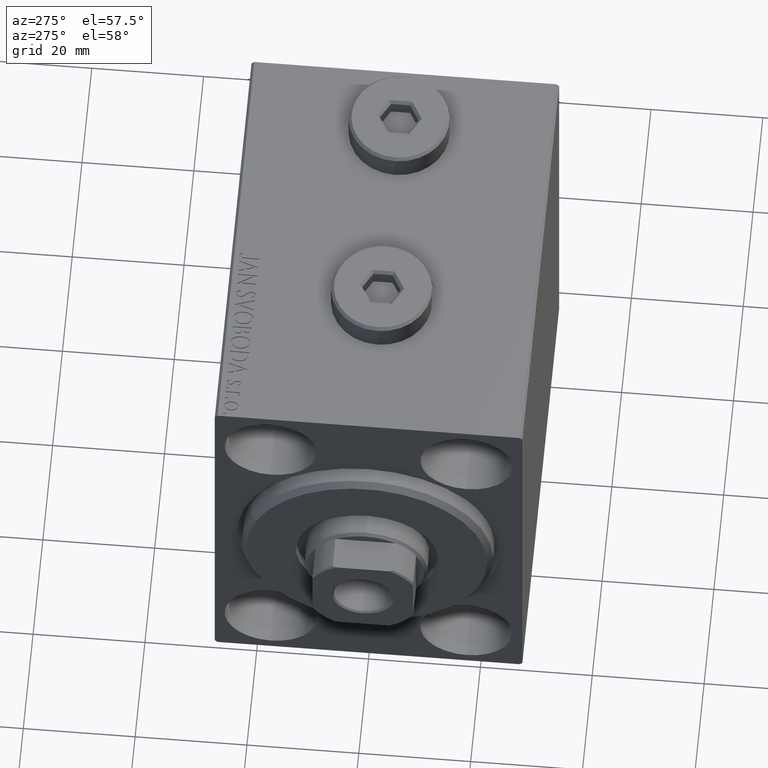
[diagram: clean part render]
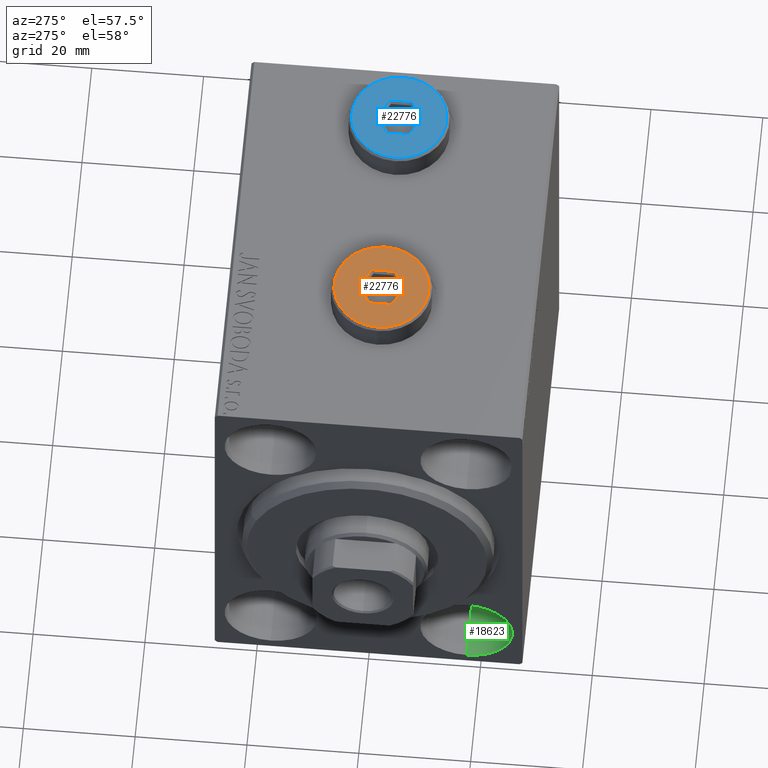
[diagram: same view with three faces highlighted in distinct colors, each labeled with its STEP entity id]
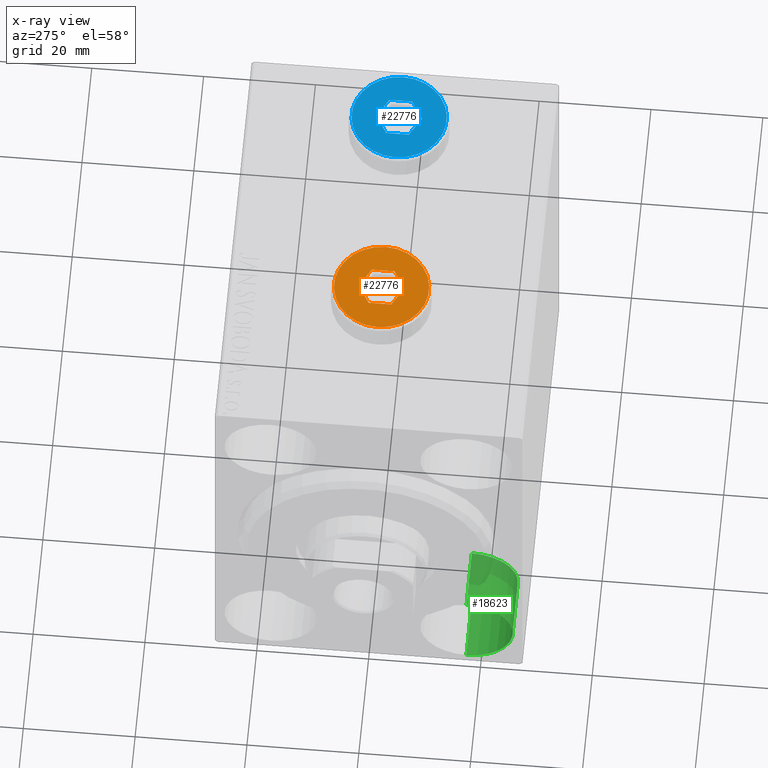
[diagram: x-ray of the same camera — body ghosted, the three highlighted faces saturated]
A machine part, auxiliary view with three faces highlighted in distinct colors.
The next image is the same camera in x-ray (body ghosted, the three faces saturated) — at least one of them is partly hidden behind the body in this view.
Their STEP definitions:

[orange] entity #22776 — the highlighted planar face has unit normal (0, 0, 1).
#1019 = VECTOR ( 'NONE', #34478, 1000.000000000000000 ) ;
#1353 = CARTESIAN_POINT ( 'NONE',  ( -1.006139216460143630E-15, -4.041451884327387667, 5.000000000000000000 ) ) ;
#2672 = CARTESIAN_POINT ( 'NONE',  ( 8.500000000000010658, 1.071565949253934716E-15, 5.000000000000000000 ) ) ;
#2702 = DIRECTION ( 'NONE',  ( 1.000000000000000000, 0.000000000000000000, -0.000000000000000000 ) ) ;
#3187 = CARTESIAN_POINT ( 'NONE',  ( -3.500000000000006661, 1.732050807568878081, 5.000000000000000000 ) ) ;
#3284 = VERTEX_POINT ( 'NONE', #29313 ) ;
#3651 = VERTEX_POINT ( 'NONE', #1353 ) ;
#4197 = ORIENTED_EDGE ( 'NONE', *, *, #7590, .T. ) ;
#4661 = CARTESIAN_POINT ( 'NONE',  ( 0.000000000000000000, 0.000000000000000000, 5.000000000000000000 ) ) ;
#4797 = CIRCLE ( 'NONE', #31079, 8.500000000000010658 ) ;
#5021 = ORIENTED_EDGE ( 'NONE', *, *, #17170, .T. ) ;
#5582 = AXIS2_PLACEMENT_3D ( 'NONE', #4661, #35951, #8314 ) ;
#6135 = DIRECTION ( 'NONE',  ( 0.8660254037844387076, 0.4999999999999998335, 0.000000000000000000 ) ) ;
#6663 = VERTEX_POINT ( 'NONE', #26979 ) ;
#7590 = EDGE_CURVE ( 'NONE', #3651, #8164, #43003, .T. ) ;
#7676 = EDGE_CURVE ( 'NONE', #8164, #44564, #27394, .T. ) ;
#8164 = VERTEX_POINT ( 'NONE', #21612 ) ;
#8314 = DIRECTION ( 'NONE',  ( 1.000000000000000000, 0.000000000000000000, 0.000000000000000000 ) ) ;
#8628 = CARTESIAN_POINT ( 'NONE',  ( 3.500000000000006661, -1.732050807568878303, 5.000000000000000000 ) ) ;
#9116 = EDGE_CURVE ( 'NONE', #40906, #6663, #34874, .T. ) ;
#11252 = VECTOR ( 'NONE', #26897, 1000.000000000000000 ) ;
#11511 = EDGE_CURVE ( 'NONE', #6663, #29919, #35589, .T. ) ;
#11673 = CARTESIAN_POINT ( 'NONE',  ( -3.250000000000003109, -2.165063509461102598, 5.000000000000000000 ) ) ;
#11685 = ORIENTED_EDGE ( 'NONE', *, *, #18774, .T. ) ;
#12681 = CARTESIAN_POINT ( 'NONE',  ( 0.000000000000000000, 0.000000000000000000, 5.000000000000000000 ) ) ;
#13201 = PLANE ( 'NONE',  #30734 ) ;
#13697 = EDGE_CURVE ( 'NONE', #29919, #3651, #30351, .T. ) ;
#15031 = DIRECTION ( 'NONE',  ( 0.000000000000000000, -1.000000000000000000, 0.000000000000000000 ) ) ;
#15205 = DIRECTION ( 'NONE',  ( 1.000000000000000000, 0.000000000000000000, 0.000000000000000000 ) ) ;
#16185 = CARTESIAN_POINT ( 'NONE',  ( -0.2500000000000027756, 3.897114317029978459, 5.000000000000000000 ) ) ;
#16404 = CARTESIAN_POINT ( 'NONE',  ( 1.590596867181068292E-15, 4.041451884327386779, 5.000000000000000000 ) ) ;
#16707 = EDGE_LOOP ( 'NONE', ( #5021, #11685 ) ) ;
#17170 = EDGE_CURVE ( 'NONE', #3284, #24249, #4797, .T. ) ;
#17388 = EDGE_LOOP ( 'NONE', ( #39709, #28501, #31256, #37763, #41286, #4197 ) ) ;
#18498 = VECTOR ( 'NONE', #25138, 1000.000000000000114 ) ;
#18774 = EDGE_CURVE ( 'NONE', #24249, #3284, #26699, .T. ) ;
#19822 = FACE_OUTER_BOUND ( 'NONE', #16707, .T. ) ;
#20054 = CARTESIAN_POINT ( 'NONE',  ( 0.000000000000000000, 0.000000000000000000, 5.000000000000000000 ) ) ;
#20448 = CARTESIAN_POINT ( 'NONE',  ( 3.500000000000006661, -2.020725942163693833, 5.000000000000000000 ) ) ;
#20661 = VECTOR ( 'NONE', #15031, 1000.000000000000000 ) ;
#21612 = CARTESIAN_POINT ( 'NONE',  ( -3.500000000000006661, -2.020725942163694278, 5.000000000000000000 ) ) ;
#22776 = ADVANCED_FACE ( 'NONE', ( #23243, #19822 ), #13201, .T. ) ;
#23052 = CARTESIAN_POINT ( 'NONE',  ( -3.500000000000006661, 2.020725942163692945, 5.000000000000000000 ) ) ;
#23243 = FACE_BOUND ( 'NONE', #17388, .T. ) ;
#24249 = VERTEX_POINT ( 'NONE', #2672 ) ;
#25138 = DIRECTION ( 'NONE',  ( -0.8660254037844385966, 0.4999999999999999445, 0.000000000000000000 ) ) ;
#26699 = CIRCLE ( 'NONE', #5582, 8.500000000000010658 ) ;
#26897 = DIRECTION ( 'NONE',  ( 0.8660254037844387076, -0.4999999999999998890, 0.000000000000000000 ) ) ;
#26979 = CARTESIAN_POINT ( 'NONE',  ( 3.500000000000006661, 2.020725942163694722, 5.000000000000000000 ) ) ;
#27394 = LINE ( 'NONE', #3187, #1019 ) ;
#28501 = ORIENTED_EDGE ( 'NONE', *, *, #35358, .T. ) ;
#29313 = CARTESIAN_POINT ( 'NONE',  ( -8.500000000000010658, 0.000000000000000000, 5.000000000000000000 ) ) ;
#29919 = VERTEX_POINT ( 'NONE', #20448 ) ;
#30351 = LINE ( 'NONE', #30794, #43414 ) ;
#30565 = CARTESIAN_POINT ( 'NONE',  ( 3.250000000000003109, 2.165063509461103042, 5.000000000000000000 ) ) ;
#30734 = AXIS2_PLACEMENT_3D ( 'NONE', #20054, #33759, #2702 ) ;
#30794 = CARTESIAN_POINT ( 'NONE',  ( 0.2500000000000027756, -3.897114317029979347, 5.000000000000000000 ) ) ;
#31079 = AXIS2_PLACEMENT_3D ( 'NONE', #12681, #33240, #15205 ) ;
#31256 = ORIENTED_EDGE ( 'NONE', *, *, #9116, .T. ) ;
#33240 = DIRECTION ( 'NONE',  ( 0.000000000000000000, 0.000000000000000000, 1.000000000000000000 ) ) ;
#33759 = DIRECTION ( 'NONE',  ( 0.000000000000000000, 0.000000000000000000, 1.000000000000000000 ) ) ;
#34478 = DIRECTION ( 'NONE',  ( 0.000000000000000000, 1.000000000000000000, 0.000000000000000000 ) ) ;
#34874 = LINE ( 'NONE', #30565, #11252 ) ;
#35358 = EDGE_CURVE ( 'NONE', #44564, #40906, #40656, .T. ) ;
#35589 = LINE ( 'NONE', #8628, #20661 ) ;
#35951 = DIRECTION ( 'NONE',  ( 0.000000000000000000, 0.000000000000000000, 1.000000000000000000 ) ) ;
#37763 = ORIENTED_EDGE ( 'NONE', *, *, #11511, .T. ) ;
#39709 = ORIENTED_EDGE ( 'NONE', *, *, #7676, .T. ) ;
#40656 = LINE ( 'NONE', #16185, #42666 ) ;
#40906 = VERTEX_POINT ( 'NONE', #16404 ) ;
#41286 = ORIENTED_EDGE ( 'NONE', *, *, #13697, .T. ) ;
#42666 = VECTOR ( 'NONE', #6135, 1000.000000000000000 ) ;
#43003 = LINE ( 'NONE', #11673, #18498 ) ;
#43414 = VECTOR ( 'NONE', #44759, 1000.000000000000000 ) ;
#44564 = VERTEX_POINT ( 'NONE', #23052 ) ;
#44759 = DIRECTION ( 'NONE',  ( -0.8660254037844387076, -0.4999999999999998890, 0.000000000000000000 ) ) ;

[blue] entity #22776 — the highlighted planar face has unit normal (0, 0, 1).
#1019 = VECTOR ( 'NONE', #34478, 1000.000000000000000 ) ;
#1353 = CARTESIAN_POINT ( 'NONE',  ( -1.006139216460143630E-15, -4.041451884327387667, 5.000000000000000000 ) ) ;
#2672 = CARTESIAN_POINT ( 'NONE',  ( 8.500000000000010658, 1.071565949253934716E-15, 5.000000000000000000 ) ) ;
#2702 = DIRECTION ( 'NONE',  ( 1.000000000000000000, 0.000000000000000000, -0.000000000000000000 ) ) ;
#3187 = CARTESIAN_POINT ( 'NONE',  ( -3.500000000000006661, 1.732050807568878081, 5.000000000000000000 ) ) ;
#3284 = VERTEX_POINT ( 'NONE', #29313 ) ;
#3651 = VERTEX_POINT ( 'NONE', #1353 ) ;
#4197 = ORIENTED_EDGE ( 'NONE', *, *, #7590, .T. ) ;
#4661 = CARTESIAN_POINT ( 'NONE',  ( 0.000000000000000000, 0.000000000000000000, 5.000000000000000000 ) ) ;
#4797 = CIRCLE ( 'NONE', #31079, 8.500000000000010658 ) ;
#5021 = ORIENTED_EDGE ( 'NONE', *, *, #17170, .T. ) ;
#5582 = AXIS2_PLACEMENT_3D ( 'NONE', #4661, #35951, #8314 ) ;
#6135 = DIRECTION ( 'NONE',  ( 0.8660254037844387076, 0.4999999999999998335, 0.000000000000000000 ) ) ;
#6663 = VERTEX_POINT ( 'NONE', #26979 ) ;
#7590 = EDGE_CURVE ( 'NONE', #3651, #8164, #43003, .T. ) ;
#7676 = EDGE_CURVE ( 'NONE', #8164, #44564, #27394, .T. ) ;
#8164 = VERTEX_POINT ( 'NONE', #21612 ) ;
#8314 = DIRECTION ( 'NONE',  ( 1.000000000000000000, 0.000000000000000000, 0.000000000000000000 ) ) ;
#8628 = CARTESIAN_POINT ( 'NONE',  ( 3.500000000000006661, -1.732050807568878303, 5.000000000000000000 ) ) ;
#9116 = EDGE_CURVE ( 'NONE', #40906, #6663, #34874, .T. ) ;
#11252 = VECTOR ( 'NONE', #26897, 1000.000000000000000 ) ;
#11511 = EDGE_CURVE ( 'NONE', #6663, #29919, #35589, .T. ) ;
#11673 = CARTESIAN_POINT ( 'NONE',  ( -3.250000000000003109, -2.165063509461102598, 5.000000000000000000 ) ) ;
#11685 = ORIENTED_EDGE ( 'NONE', *, *, #18774, .T. ) ;
#12681 = CARTESIAN_POINT ( 'NONE',  ( 0.000000000000000000, 0.000000000000000000, 5.000000000000000000 ) ) ;
#13201 = PLANE ( 'NONE',  #30734 ) ;
#13697 = EDGE_CURVE ( 'NONE', #29919, #3651, #30351, .T. ) ;
#15031 = DIRECTION ( 'NONE',  ( 0.000000000000000000, -1.000000000000000000, 0.000000000000000000 ) ) ;
#15205 = DIRECTION ( 'NONE',  ( 1.000000000000000000, 0.000000000000000000, 0.000000000000000000 ) ) ;
#16185 = CARTESIAN_POINT ( 'NONE',  ( -0.2500000000000027756, 3.897114317029978459, 5.000000000000000000 ) ) ;
#16404 = CARTESIAN_POINT ( 'NONE',  ( 1.590596867181068292E-15, 4.041451884327386779, 5.000000000000000000 ) ) ;
#16707 = EDGE_LOOP ( 'NONE', ( #5021, #11685 ) ) ;
#17170 = EDGE_CURVE ( 'NONE', #3284, #24249, #4797, .T. ) ;
#17388 = EDGE_LOOP ( 'NONE', ( #39709, #28501, #31256, #37763, #41286, #4197 ) ) ;
#18498 = VECTOR ( 'NONE', #25138, 1000.000000000000114 ) ;
#18774 = EDGE_CURVE ( 'NONE', #24249, #3284, #26699, .T. ) ;
#19822 = FACE_OUTER_BOUND ( 'NONE', #16707, .T. ) ;
#20054 = CARTESIAN_POINT ( 'NONE',  ( 0.000000000000000000, 0.000000000000000000, 5.000000000000000000 ) ) ;
#20448 = CARTESIAN_POINT ( 'NONE',  ( 3.500000000000006661, -2.020725942163693833, 5.000000000000000000 ) ) ;
#20661 = VECTOR ( 'NONE', #15031, 1000.000000000000000 ) ;
#21612 = CARTESIAN_POINT ( 'NONE',  ( -3.500000000000006661, -2.020725942163694278, 5.000000000000000000 ) ) ;
#22776 = ADVANCED_FACE ( 'NONE', ( #23243, #19822 ), #13201, .T. ) ;
#23052 = CARTESIAN_POINT ( 'NONE',  ( -3.500000000000006661, 2.020725942163692945, 5.000000000000000000 ) ) ;
#23243 = FACE_BOUND ( 'NONE', #17388, .T. ) ;
#24249 = VERTEX_POINT ( 'NONE', #2672 ) ;
#25138 = DIRECTION ( 'NONE',  ( -0.8660254037844385966, 0.4999999999999999445, 0.000000000000000000 ) ) ;
#26699 = CIRCLE ( 'NONE', #5582, 8.500000000000010658 ) ;
#26897 = DIRECTION ( 'NONE',  ( 0.8660254037844387076, -0.4999999999999998890, 0.000000000000000000 ) ) ;
#26979 = CARTESIAN_POINT ( 'NONE',  ( 3.500000000000006661, 2.020725942163694722, 5.000000000000000000 ) ) ;
#27394 = LINE ( 'NONE', #3187, #1019 ) ;
#28501 = ORIENTED_EDGE ( 'NONE', *, *, #35358, .T. ) ;
#29313 = CARTESIAN_POINT ( 'NONE',  ( -8.500000000000010658, 0.000000000000000000, 5.000000000000000000 ) ) ;
#29919 = VERTEX_POINT ( 'NONE', #20448 ) ;
#30351 = LINE ( 'NONE', #30794, #43414 ) ;
#30565 = CARTESIAN_POINT ( 'NONE',  ( 3.250000000000003109, 2.165063509461103042, 5.000000000000000000 ) ) ;
#30734 = AXIS2_PLACEMENT_3D ( 'NONE', #20054, #33759, #2702 ) ;
#30794 = CARTESIAN_POINT ( 'NONE',  ( 0.2500000000000027756, -3.897114317029979347, 5.000000000000000000 ) ) ;
#31079 = AXIS2_PLACEMENT_3D ( 'NONE', #12681, #33240, #15205 ) ;
#31256 = ORIENTED_EDGE ( 'NONE', *, *, #9116, .T. ) ;
#33240 = DIRECTION ( 'NONE',  ( 0.000000000000000000, 0.000000000000000000, 1.000000000000000000 ) ) ;
#33759 = DIRECTION ( 'NONE',  ( 0.000000000000000000, 0.000000000000000000, 1.000000000000000000 ) ) ;
#34478 = DIRECTION ( 'NONE',  ( 0.000000000000000000, 1.000000000000000000, 0.000000000000000000 ) ) ;
#34874 = LINE ( 'NONE', #30565, #11252 ) ;
#35358 = EDGE_CURVE ( 'NONE', #44564, #40906, #40656, .T. ) ;
#35589 = LINE ( 'NONE', #8628, #20661 ) ;
#35951 = DIRECTION ( 'NONE',  ( 0.000000000000000000, 0.000000000000000000, 1.000000000000000000 ) ) ;
#37763 = ORIENTED_EDGE ( 'NONE', *, *, #11511, .T. ) ;
#39709 = ORIENTED_EDGE ( 'NONE', *, *, #7676, .T. ) ;
#40656 = LINE ( 'NONE', #16185, #42666 ) ;
#40906 = VERTEX_POINT ( 'NONE', #16404 ) ;
#41286 = ORIENTED_EDGE ( 'NONE', *, *, #13697, .T. ) ;
#42666 = VECTOR ( 'NONE', #6135, 1000.000000000000000 ) ;
#43003 = LINE ( 'NONE', #11673, #18498 ) ;
#43414 = VECTOR ( 'NONE', #44759, 1000.000000000000000 ) ;
#44564 = VERTEX_POINT ( 'NONE', #23052 ) ;
#44759 = DIRECTION ( 'NONE',  ( -0.8660254037844387076, -0.4999999999999998890, 0.000000000000000000 ) ) ;

[green] entity #18623 — the highlighted cylindrical surface (partial cylindrical patch) has radius 8.25 mm, axis along (-1, -0, -0).
#2339 = VERTEX_POINT ( 'NONE', #15663 ) ;
#3348 = DIRECTION ( 'NONE',  ( -1.000000000000000000, -0.000000000000000000, -0.000000000000000000 ) ) ;
#3531 = CARTESIAN_POINT ( 'NONE',  ( 11.00000000000000000, -17.50000000000000355, -27.50000000000000355 ) ) ;
#4093 = CARTESIAN_POINT ( 'NONE',  ( 0.000000000000000000, -17.50000000000000355, -27.50000000000000355 ) ) ;
#6302 = AXIS2_PLACEMENT_3D ( 'NONE', #3531, #17462, #31389 ) ;
#6431 = CARTESIAN_POINT ( 'NONE',  ( 11.00000000000000000, -17.50000000000000355, -27.50000000000000355 ) ) ;
#8226 = AXIS2_PLACEMENT_3D ( 'NONE', #4093, #14136, #42495 ) ;
#9964 = VERTEX_POINT ( 'NONE', #29735 ) ;
#10192 = LINE ( 'NONE', #41316, #14786 ) ;
#10237 = CIRCLE ( 'NONE', #15373, 8.250000000000000000 ) ;
#12683 = ORIENTED_EDGE ( 'NONE', *, *, #32308, .T. ) ;
#13505 = DIRECTION ( 'NONE',  ( 0.000000000000000000, 0.000000000000000000, 1.000000000000000000 ) ) ;
#14136 = DIRECTION ( 'NONE',  ( -1.000000000000000000, 0.000000000000000000, 0.000000000000000000 ) ) ;
#14786 = VECTOR ( 'NONE', #3348, 1000.000000000000000 ) ;
#15373 = AXIS2_PLACEMENT_3D ( 'NONE', #6431, #30636, #13505 ) ;
#15663 = CARTESIAN_POINT ( 'NONE',  ( 0.000000000000000000, -17.50000000000000355, -19.25000000000000355 ) ) ;
#17462 = DIRECTION ( 'NONE',  ( -1.000000000000000000, -0.000000000000000000, -0.000000000000000000 ) ) ;
#17559 = CARTESIAN_POINT ( 'NONE',  ( 11.00000000000000000, -17.50000000000000355, -35.75000000000000711 ) ) ;
#18623 = ADVANCED_FACE ( 'NONE', ( #24527 ), #34824, .F. ) ;
#18720 = EDGE_CURVE ( 'NONE', #9964, #2339, #25430, .T. ) ;
#20843 = ORIENTED_EDGE ( 'NONE', *, *, #18720, .F. ) ;
#21944 = VERTEX_POINT ( 'NONE', #17559 ) ;
#24527 = FACE_OUTER_BOUND ( 'NONE', #34793, .T. ) ;
#25430 = LINE ( 'NONE', #39399, #37682 ) ;
#25598 = EDGE_CURVE ( 'NONE', #21944, #9964, #10237, .T. ) ;
#26367 = CARTESIAN_POINT ( 'NONE',  ( 0.000000000000000000, -17.50000000000000355, -35.75000000000000711 ) ) ;
#27900 = CIRCLE ( 'NONE', #8226, 8.250000000000000000 ) ;
#29735 = CARTESIAN_POINT ( 'NONE',  ( 11.00000000000000000, -17.50000000000000355, -19.25000000000000355 ) ) ;
#30636 = DIRECTION ( 'NONE',  ( -1.000000000000000000, 0.000000000000000000, 0.000000000000000000 ) ) ;
#31051 = EDGE_CURVE ( 'NONE', #21944, #33901, #10192, .T. ) ;
#31389 = DIRECTION ( 'NONE',  ( 0.000000000000000000, 0.000000000000000000, 1.000000000000000000 ) ) ;
#31933 = ORIENTED_EDGE ( 'NONE', *, *, #31051, .T. ) ;
#32308 = EDGE_CURVE ( 'NONE', #33901, #2339, #27900, .T. ) ;
#33901 = VERTEX_POINT ( 'NONE', #26367 ) ;
#34793 = EDGE_LOOP ( 'NONE', ( #37249, #31933, #12683, #20843 ) ) ;
#34824 = CYLINDRICAL_SURFACE ( 'NONE', #6302, 8.250000000000000000 ) ;
#37249 = ORIENTED_EDGE ( 'NONE', *, *, #25598, .F. ) ;
#37682 = VECTOR ( 'NONE', #39630, 1000.000000000000000 ) ;
#39399 = CARTESIAN_POINT ( 'NONE',  ( 11.00000000000000000, -17.50000000000000355, -19.25000000000000355 ) ) ;
#39630 = DIRECTION ( 'NONE',  ( -1.000000000000000000, -0.000000000000000000, -0.000000000000000000 ) ) ;
#41316 = CARTESIAN_POINT ( 'NONE',  ( 11.00000000000000000, -17.50000000000000355, -35.75000000000000711 ) ) ;
#42495 = DIRECTION ( 'NONE',  ( 0.000000000000000000, 0.000000000000000000, 1.000000000000000000 ) ) ;